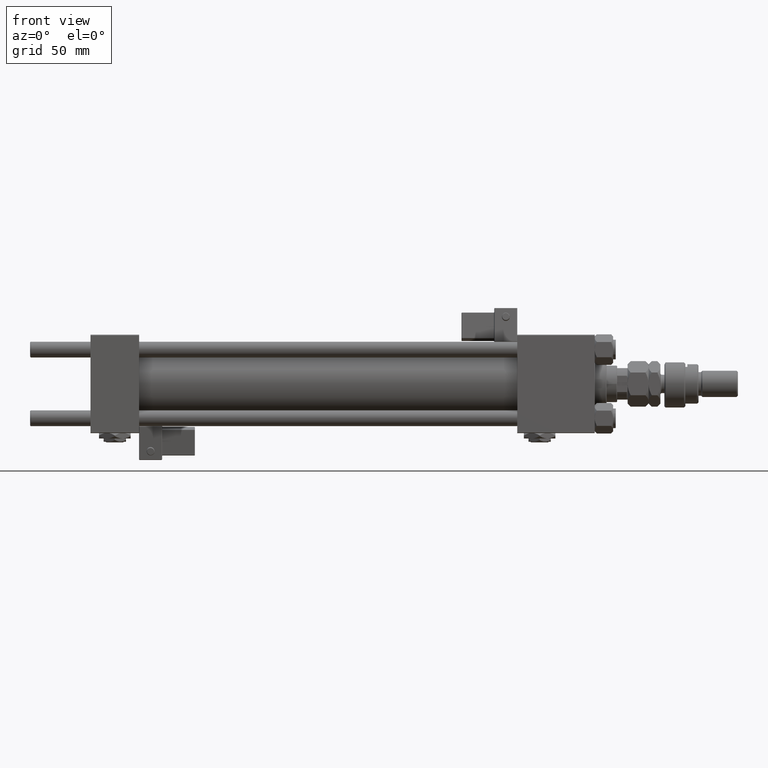
[diagram: clean part render]
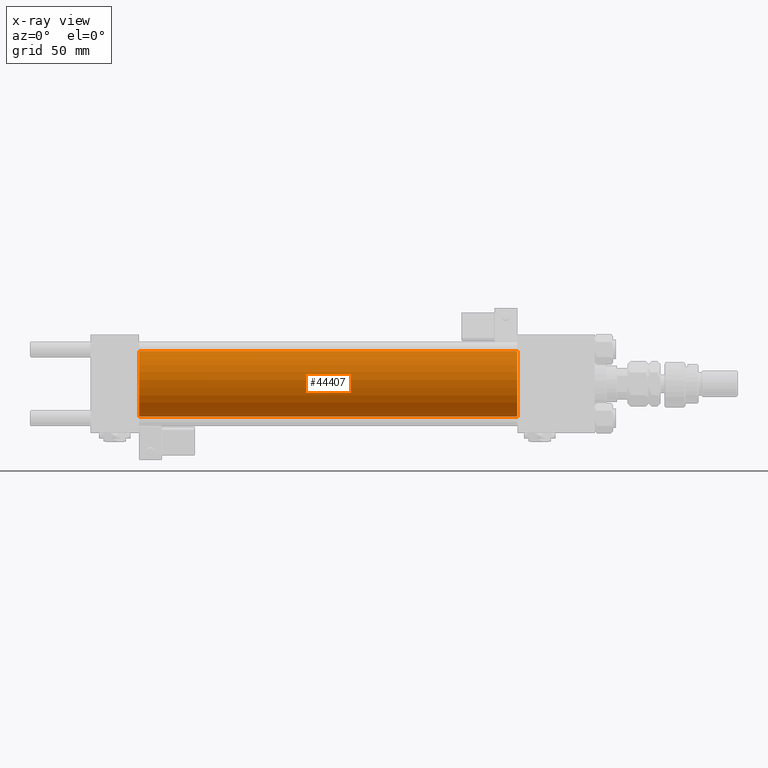
[diagram: x-ray — body ghosted, one internal face saturated and labeled with its STEP entity id]
A machine part, front view, then the same camera in x-ray: the body is ghosted and one INTERNAL B-rep face — a face not visible from any outside direction — is saturated and labeled: STEP entity #44407.
In plain terms, the highlighted cylindrical surface (edge-blend (fillet) strip) has radius 25 mm, axis along (-1, -0, -0).
Its self-contained STEP definition (entity closure, byte-faithful):
#751 = AXIS2_PLACEMENT_3D ( 'NONE', #14440, #35969, #32220 ) ;
#1316 = ORIENTED_EDGE ( 'NONE', *, *, #42968, .F. ) ;
#2720 = DIRECTION ( 'NONE',  ( 0.000000000000000000, 0.000000000000000000, 1.000000000000000000 ) ) ;
#4076 = LINE ( 'NONE', #43164, #41219 ) ;
#4979 = LINE ( 'NONE', #9857, #25611 ) ;
#5017 = CARTESIAN_POINT ( 'NONE',  ( 37.00000000000000000, 0.000000000000000000, 25.00000000000000000 ) ) ;
#9857 = CARTESIAN_POINT ( 'NONE',  ( 324.9999999999999432, 0.000000000000000000, 25.00000000000000000 ) ) ;
#11345 = CARTESIAN_POINT ( 'NONE',  ( 324.9999999999999432, 0.000000000000000000, 0.000000000000000000 ) ) ;
#12769 = VERTEX_POINT ( 'NONE', #5017 ) ;
#13260 = ORIENTED_EDGE ( 'NONE', *, *, #31854, .T. ) ;
#13371 = ORIENTED_EDGE ( 'NONE', *, *, #15776, .T. ) ;
#14440 = CARTESIAN_POINT ( 'NONE',  ( 37.00000000000000000, 0.000000000000000000, 0.000000000000000000 ) ) ;
#15184 = VERTEX_POINT ( 'NONE', #21885 ) ;
#15388 = FACE_OUTER_BOUND ( 'NONE', #20479, .T. ) ;
#15776 = EDGE_CURVE ( 'NONE', #42145, #15184, #4076, .T. ) ;
#17840 = CARTESIAN_POINT ( 'NONE',  ( 324.9999999999999432, 3.061616997868383043E-15, -25.00000000000000000 ) ) ;
#18366 = AXIS2_PLACEMENT_3D ( 'NONE', #11345, #50689, #2720 ) ;
#20248 = CYLINDRICAL_SURFACE ( 'NONE', #18366, 25.00000000000000000 ) ;
#20479 = EDGE_LOOP ( 'NONE', ( #13260, #13371, #49153, #1316 ) ) ;
#21587 = AXIS2_PLACEMENT_3D ( 'NONE', #28992, #46542, #36490 ) ;
#21885 = CARTESIAN_POINT ( 'NONE',  ( 37.00000000000000000, 3.061616997868383043E-15, -25.00000000000000000 ) ) ;
#25611 = VECTOR ( 'NONE', #49207, 1000.000000000000000 ) ;
#28992 = CARTESIAN_POINT ( 'NONE',  ( 324.9999999999999432, 0.000000000000000000, 0.000000000000000000 ) ) ;
#31854 = EDGE_CURVE ( 'NONE', #50202, #42145, #56439, .T. ) ;
#32220 = DIRECTION ( 'NONE',  ( 0.000000000000000000, 0.000000000000000000, -1.000000000000000000 ) ) ;
#34771 = CARTESIAN_POINT ( 'NONE',  ( 324.9999999999999432, 0.000000000000000000, 25.00000000000000000 ) ) ;
#35607 = CIRCLE ( 'NONE', #751, 25.00000000000000000 ) ;
#35969 = DIRECTION ( 'NONE',  ( 1.000000000000000000, 0.000000000000000000, 0.000000000000000000 ) ) ;
#36490 = DIRECTION ( 'NONE',  ( 0.000000000000000000, 0.000000000000000000, -1.000000000000000000 ) ) ;
#41123 = EDGE_CURVE ( 'NONE', #12769, #15184, #35607, .T. ) ;
#41219 = VECTOR ( 'NONE', #42588, 1000.000000000000000 ) ;
#42145 = VERTEX_POINT ( 'NONE', #17840 ) ;
#42588 = DIRECTION ( 'NONE',  ( -1.000000000000000000, -0.000000000000000000, -0.000000000000000000 ) ) ;
#42968 = EDGE_CURVE ( 'NONE', #50202, #12769, #4979, .T. ) ;
#43164 = CARTESIAN_POINT ( 'NONE',  ( 324.9999999999999432, 3.061616997868383043E-15, -25.00000000000000000 ) ) ;
#44407 = ADVANCED_FACE ( 'NONE', ( #15388 ), #20248, .F. ) ;
#46542 = DIRECTION ( 'NONE',  ( 1.000000000000000000, 0.000000000000000000, 0.000000000000000000 ) ) ;
#49153 = ORIENTED_EDGE ( 'NONE', *, *, #41123, .F. ) ;
#49207 = DIRECTION ( 'NONE',  ( -1.000000000000000000, -0.000000000000000000, -0.000000000000000000 ) ) ;
#50202 = VERTEX_POINT ( 'NONE', #34771 ) ;
#50689 = DIRECTION ( 'NONE',  ( -1.000000000000000000, -0.000000000000000000, -0.000000000000000000 ) ) ;
#56439 = CIRCLE ( 'NONE', #21587, 25.00000000000000000 ) ;